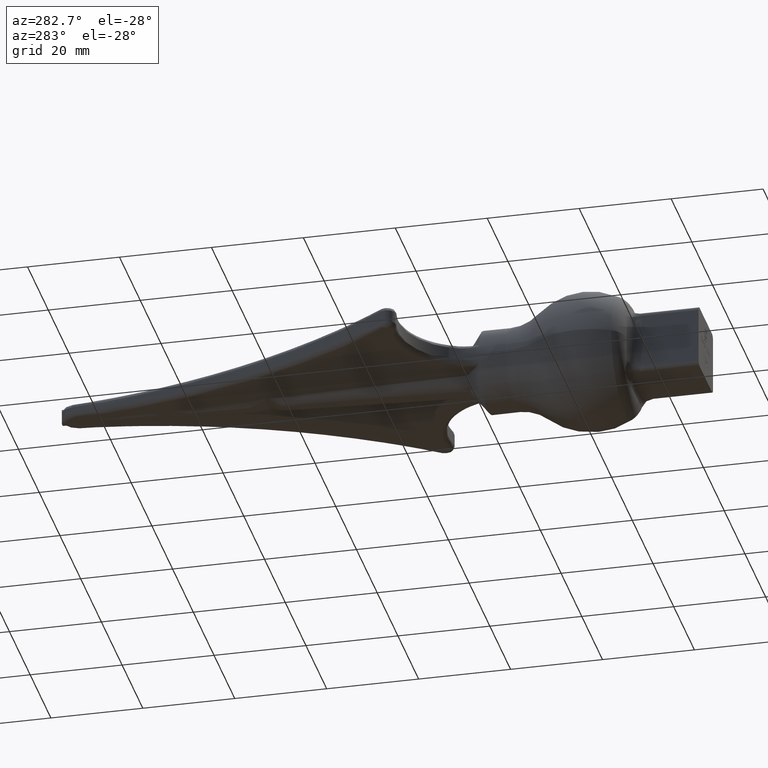
[diagram: clean part render]
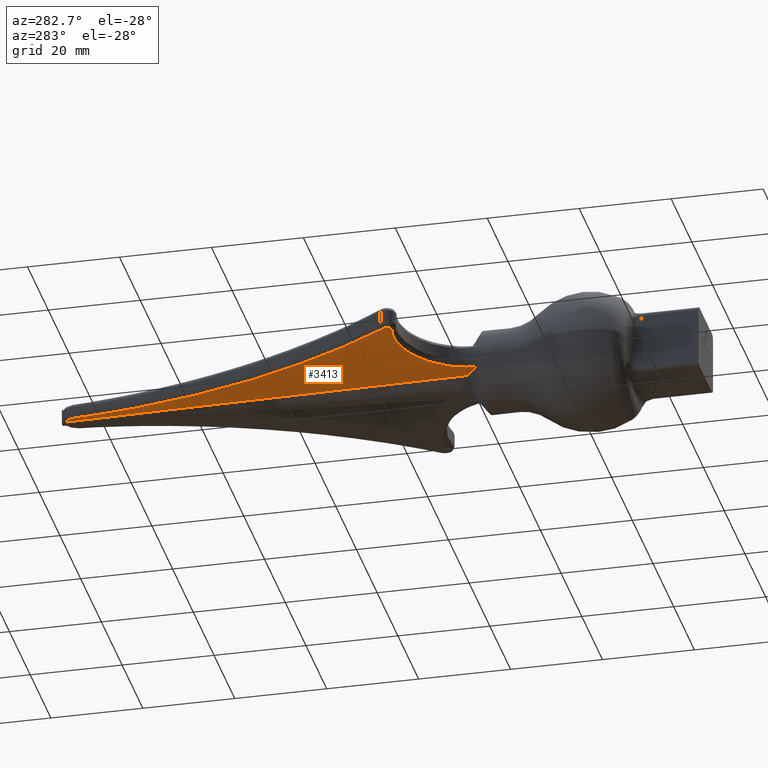
[diagram: same view with one face highlighted and labeled with its STEP entity id]
A machine part, auxiliary view. The second image highlights one B-rep face of the part: STEP entity #3413.
In plain terms, the highlighted planar face has unit normal (0, -0.0105, 0.9999).
Its self-contained STEP definition (entity closure, byte-faithful):
#70 = CARTESIAN_POINT ( 'NONE',  ( -7.854329753005541370, 3.091869254954575652, -2.467454007842583508 ) ) ;
#133 = CARTESIAN_POINT ( 'NONE',  ( -3.796507904350620688, 20.50237821117869785, -2.284185492513907345 ) ) ;
#138 = B_SPLINE_CURVE_WITH_KNOTS ( 'NONE', 3,
 ( #70, #252, #4258, #8591, #11656, #200, #7434, #2277 ),
 .UNSPECIFIED., .F., .F.,
 ( 4, 2, 2, 4 ),
 ( 1.710710245400073667E-16, 0.001541865848521079474, 0.003083731697041987643, 0.006167463394083807018 ),
 .UNSPECIFIED. ) ;
#200 = CARTESIAN_POINT ( 'NONE',  ( -8.553431330460648851, 7.141533669906425352, -2.424825961369405203 ) ) ;
#252 = CARTESIAN_POINT ( 'NONE',  ( -7.859989776406702155, 3.609375473711436744, -2.462006573960931810 ) ) ;
#1157 = CARTESIAN_POINT ( 'NONE',  ( -1.294539548991481936, 84.68681728592720503, -1.608559818042864631 ) ) ;
#1197 = CARTESIAN_POINT ( 'NONE',  ( -1.693392371581444511, 75.51926029769266790, -1.705060417919018079 ) ) ;
#1358 = CARTESIAN_POINT ( 'NONE',  ( -7.854329753005541370, 3.091869254954575652, -2.467454007842583508 ) ) ;
#1469 = EDGE_CURVE ( 'NONE', #4146, #11048, #12347, .T. ) ;
#1686 =( BOUNDED_CURVE ( )  B_SPLINE_CURVE ( 3, ( #2720, #9088, #1768, #6960 ),
 .UNSPECIFIED., .F., .T. ) 
 B_SPLINE_CURVE_WITH_KNOTS ( ( 4, 4 ),
 ( 2.113038688172131696, 3.340929958572117275 ),
 .UNSPECIFIED. ) 
 CURVE ( )  GEOMETRIC_REPRESENTATION_ITEM ( )  RATIONAL_B_SPLINE_CURVE ( ( 1.000000000000000000, 0.8782542116984448644, 0.8782542116984448644, 1.000000000000000000 ) ) 
 REPRESENTATION_ITEM ( '' )  );
#1768 = CARTESIAN_POINT ( 'NONE',  ( -20.35914102226909250, 18.53393158674959906, -2.304905983297371730 ) ) ;
#1884 = EDGE_CURVE ( 'NONE', #4413, #3468, #1686, .T. ) ;
#2000 = CARTESIAN_POINT ( 'NONE',  ( -9.490750306289138294, 8.971169018373759130, -2.405566641911854653 ) ) ;
#2004 = ORIENTED_EDGE ( 'NONE', *, *, #1884, .T. ) ;
#2277 = CARTESIAN_POINT ( 'NONE',  ( -9.490750306289138294, 8.971169018373759130, -2.405566641911854653 ) ) ;
#2442 = CARTESIAN_POINT ( 'NONE',  ( -2.253706788787181559, 91.94302420954942079, -1.532178692531050990 ) ) ;
#2451 = ORIENTED_EDGE ( 'NONE', *, *, #5126, .T. ) ;
#2720 = CARTESIAN_POINT ( 'NONE',  ( -9.490750306289138294, 8.971169018373759130, -2.405566641911854653 ) ) ;
#2722 = VERTEX_POINT ( 'NONE', #2907 ) ;
#2842 = PLANE ( 'NONE',  #4104 ) ;
#2903 = FACE_OUTER_BOUND ( 'NONE', #7783, .T. ) ;
#2907 = CARTESIAN_POINT ( 'NONE',  ( -4.329915638581164572, 5.830165751651379402, -2.438629834193142720 ) ) ;
#3073 = CARTESIAN_POINT ( 'NONE',  ( -29.42892219843267654, 17.70935872610226269, -2.313585697619974901 ) ) ;
#3234 = CARTESIAN_POINT ( 'NONE',  ( -28.82035514264422105, 18.58238011966781045, -2.304395998740337070 ) ) ;
#3413 = ADVANCED_FACE ( 'NONE', ( #2903 ), #2842, .F. ) ;
#3468 = VERTEX_POINT ( 'NONE', #9160 ) ;
#3766 = CARTESIAN_POINT ( 'NONE',  ( -0.8333524748366105683, 93.85142774900157292, -1.512090234221028284 ) ) ;
#4104 = AXIS2_PLACEMENT_3D ( 'NONE', #13438, #7075, #8178 ) ;
#4146 = VERTEX_POINT ( 'NONE', #2442 ) ;
#4258 = CARTESIAN_POINT ( 'NONE',  ( -7.896760635885220481, 4.122842294474043712, -2.456601660058167713 ) ) ;
#4413 = VERTEX_POINT ( 'NONE', #2000 ) ;
#5015 = CARTESIAN_POINT ( 'NONE',  ( -28.84510627444014119, 16.81959517216959199, -2.322951629766634607 ) ) ;
#5053 = EDGE_CURVE ( 'NONE', #3468, #6490, #6569, .T. ) ;
#5126 = EDGE_CURVE ( 'NONE', #11048, #2722, #8145, .T. ) ;
#5243 = CARTESIAN_POINT ( 'NONE',  ( -0.8333524748366105683, 93.85142774900157292, -1.512090234221028284 ) ) ;
#5251 = CARTESIAN_POINT ( 'NONE',  ( -2.141844955115666860, 64.51695993396603512, -1.820874105958246947 ) ) ;
#6262 = CARTESIAN_POINT ( 'NONE',  ( -1.652118744983253062, 93.52697559680827055, -1.515505520033589626 ) ) ;
#6441 = CARTESIAN_POINT ( 'NONE',  ( -3.259547802638331770, 35.17447155252164492, -2.129742404710296633 ) ) ;
#6490 = VERTEX_POINT ( 'NONE', #11069 ) ;
#6569 =( BOUNDED_CURVE ( )  B_SPLINE_CURVE ( 3, ( #11408, #5015, #3073, #8237 ),
 .UNSPECIFIED., .F., .T. ) 
 B_SPLINE_CURVE_WITH_KNOTS ( ( 4, 4 ),
 ( 6.083848002197265181, 8.462746181518342681 ),
 .UNSPECIFIED. ) 
 CURVE ( )  GEOMETRIC_REPRESENTATION_ITEM ( )  RATIONAL_B_SPLINE_CURVE ( ( 1.000000000000000000, 0.5814475092651740784, 0.5814475092651740784, 1.000000000000000000 ) ) 
 REPRESENTATION_ITEM ( '' )  );
#6960 = CARTESIAN_POINT ( 'NONE',  ( -27.80198019801980536, 17.03032771286056501, -2.320733392496203251 ) ) ;
#6988 =( BOUNDED_CURVE ( )  B_SPLINE_CURVE ( 3, ( #3234, #10726, #8635, #9574 ),
 .UNSPECIFIED., .F., .T. ) 
 B_SPLINE_CURVE_WITH_KNOTS ( ( 4, 4 ),
 ( 0.9620317792510452160, 1.484667573167248733 ),
 .UNSPECIFIED. ) 
 CURVE ( )  GEOMETRIC_REPRESENTATION_ITEM ( )  RATIONAL_B_SPLINE_CURVE ( ( 1.000000000000000000, 0.9773668888780081554, 0.9773668888780081554, 1.000000000000000000 ) ) 
 REPRESENTATION_ITEM ( '' )  );
#7075 = DIRECTION ( 'NONE',  ( 0.000000000000000000, -0.01052573266254262438, 0.9999446029415413051 ) ) ;
#7146 = EDGE_CURVE ( 'NONE', #7620, #2722, #12525, .T. ) ;
#7309 = CARTESIAN_POINT ( 'NONE',  ( -0.8333524748366105683, 93.85142774900157292, -1.512090234221028284 ) ) ;
#7384 = ORIENTED_EDGE ( 'NONE', *, *, #10605, .T. ) ;
#7434 = CARTESIAN_POINT ( 'NONE',  ( -8.956198649878352569, 8.083919562719053431, -2.414906109866115091 ) ) ;
#7495 = CARTESIAN_POINT ( 'NONE',  ( -0.9382117186332945558, 92.01916071627105964, -1.531377255618191935 ) ) ;
#7620 = VERTEX_POINT ( 'NONE', #1358 ) ;
#7783 = EDGE_LOOP ( 'NONE', ( #7384, #7972, #2451, #11001, #12113, #2004, #12051 ) ) ;
#7972 = ORIENTED_EDGE ( 'NONE', *, *, #1469, .T. ) ;
#8120 = CARTESIAN_POINT ( 'NONE',  ( -4.929701899576538260, 5.389742011390485033, -2.443265873564310020 ) ) ;
#8145 = B_SPLINE_CURVE_WITH_KNOTS ( 'NONE', 3,
 ( #7309, #7495, #12800, #9462, #1157, #11587, #1197, #5251, #12711, #6441, #133, #12661 ),
 .UNSPECIFIED., .F., .F.,
 ( 4, 2, 2, 2, 2, 4 ),
 ( 0.001150813175589268048, 0.006656910223983476121, 0.01216300727237768463, 0.02317520136916614154, 0.04519958956274301026, 0.08924836594989674077 ),
 .UNSPECIFIED. ) ;
#8178 = DIRECTION ( 'NONE',  ( 0.000000000000000000, 0.9999446029415411941, 0.01052573266254262264 ) ) ;
#8237 = CARTESIAN_POINT ( 'NONE',  ( -28.82035514264422105, 18.58238011966781045, -2.304395998740337070 ) ) ;
#8480 = EDGE_CURVE ( 'NONE', #7620, #4413, #138, .T. ) ;
#8591 = CARTESIAN_POINT ( 'NONE',  ( -8.036911557785396454, 5.141127467660705719, -2.445882868761465545 ) ) ;
#8635 = CARTESIAN_POINT ( 'NONE',  ( -4.542751232539702144, 65.43176776219013391, -1.811244549871678045 ) ) ;
#9088 = CARTESIAN_POINT ( 'NONE',  ( -13.40928161261183682, 15.47515179871939672, -2.337103665276637710 ) ) ;
#9160 = CARTESIAN_POINT ( 'NONE',  ( -27.80198019801980536, 17.03032771286056501, -2.320733392496203251 ) ) ;
#9294 = CARTESIAN_POINT ( 'NONE',  ( -7.274186412509608957, 3.557521988030443172, -2.462552400125995966 ) ) ;
#9462 = CARTESIAN_POINT ( 'NONE',  ( -1.210179520734502079, 86.52011483803049430, -1.589261949073355717 ) ) ;
#9498 = CARTESIAN_POINT ( 'NONE',  ( -2.177946214697448202, 92.82046807647557785, -1.522942441300249916 ) ) ;
#9574 = CARTESIAN_POINT ( 'NONE',  ( -2.253706788787181559, 91.94302420954942079, -1.532178692531050990 ) ) ;
#10605 = EDGE_CURVE ( 'NONE', #6490, #4146, #6988, .T. ) ;
#10726 = CARTESIAN_POINT ( 'NONE',  ( -13.60337069085965211, 40.41194326411183368, -2.074611123535661683 ) ) ;
#11001 = ORIENTED_EDGE ( 'NONE', *, *, #7146, .F. ) ;
#11048 = VERTEX_POINT ( 'NONE', #3766 ) ;
#11069 = CARTESIAN_POINT ( 'NONE',  ( -28.82035514264422105, 18.58238011966781045, -2.304395998740337070 ) ) ;
#11408 = CARTESIAN_POINT ( 'NONE',  ( -27.80198019801980536, 17.03032771286056501, -2.320733392496203251 ) ) ;
#11431 = CARTESIAN_POINT ( 'NONE',  ( -4.329915638581164572, 5.830165751651379402, -2.438629834193142720 ) ) ;
#11578 = CARTESIAN_POINT ( 'NONE',  ( -2.253706788787181559, 91.94302420954942079, -1.532178692531050990 ) ) ;
#11587 = CARTESIAN_POINT ( 'NONE',  ( -1.539919268434503552, 79.18656535118752515, -1.666457206829598858 ) ) ;
#11656 = CARTESIAN_POINT ( 'NONE',  ( -8.140621388637992339, 5.647900832467756871, -2.440548412289811786 ) ) ;
#12051 = ORIENTED_EDGE ( 'NONE', *, *, #5053, .T. ) ;
#12113 = ORIENTED_EDGE ( 'NONE', *, *, #8480, .T. ) ;
#12347 =( BOUNDED_CURVE ( )  B_SPLINE_CURVE ( 3, ( #11578, #9498, #6262, #5243 ),
 .UNSPECIFIED., .F., .T. ) 
 B_SPLINE_CURVE_WITH_KNOTS ( ( 4, 4 ),
 ( 1.656925080422545271, 2.764306301302729363 ),
 .UNSPECIFIED. ) 
 CURVE ( )  GEOMETRIC_REPRESENTATION_ITEM ( )  RATIONAL_B_SPLINE_CURVE ( ( 1.000000000000000000, 0.9003931237007594124, 0.9003931237007594124, 1.000000000000000000 ) ) 
 REPRESENTATION_ITEM ( '' )  );
#12451 = CARTESIAN_POINT ( 'NONE',  ( -5.519696244205707814, 4.936527921161864008, -2.448036548198295304 ) ) ;
#12525 = B_SPLINE_CURVE_WITH_KNOTS ( 'NONE', 3,
 ( #13467, #9294, #13561, #12451, #8120, #11431 ),
 .UNSPECIFIED., .F., .F.,
 ( 4, 2, 4 ),
 ( 0.001026231712780037745, 0.003257842796032477291, 0.005489453879284917487 ),
 .UNSPECIFIED. ) ;
#12661 = CARTESIAN_POINT ( 'NONE',  ( -4.329915638581164572, 5.830165751651379402, -2.438629834193142720 ) ) ;
#12711 = CARTESIAN_POINT ( 'NONE',  ( -2.424621932577562866, 57.18146734130995412, -1.898089817459890583 ) ) ;
#12800 = CARTESIAN_POINT ( 'NONE',  ( -1.031788890954630666, 90.18625873917980584, -1.550670960640205154 ) ) ;
#13438 = CARTESIAN_POINT ( 'NONE',  ( 35.00000000000000000, 4.303849495621154899E-16, -2.500000000000000000 ) ) ;
#13467 = CARTESIAN_POINT ( 'NONE',  ( -7.854329753005541370, 3.091869254954575652, -2.467454007842583508 ) ) ;
#13561 = CARTESIAN_POINT ( 'NONE',  ( -6.692080315802240165, 4.020668636194780987, -2.457677172250581688 ) ) ;